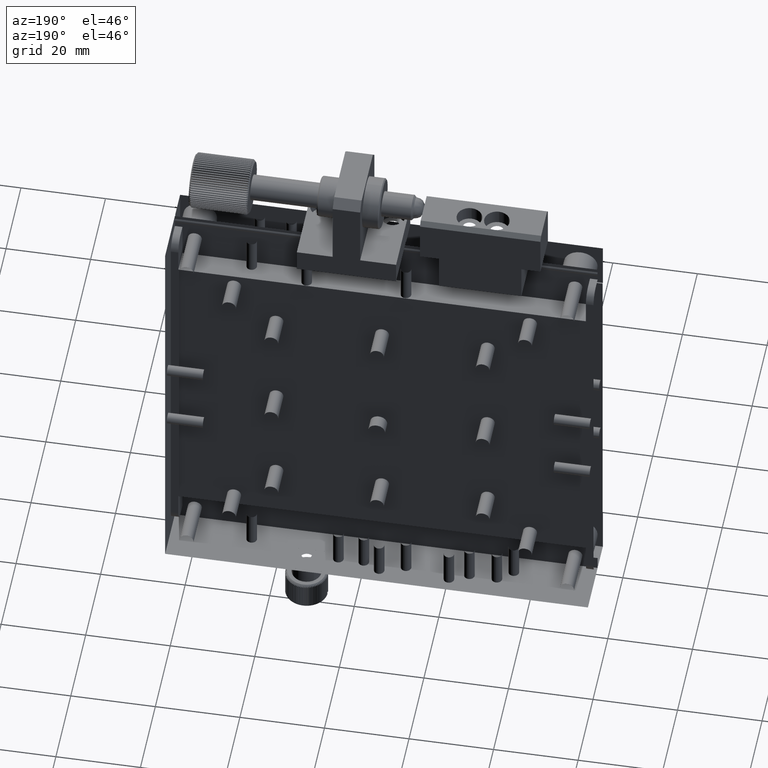
[diagram: clean part render]
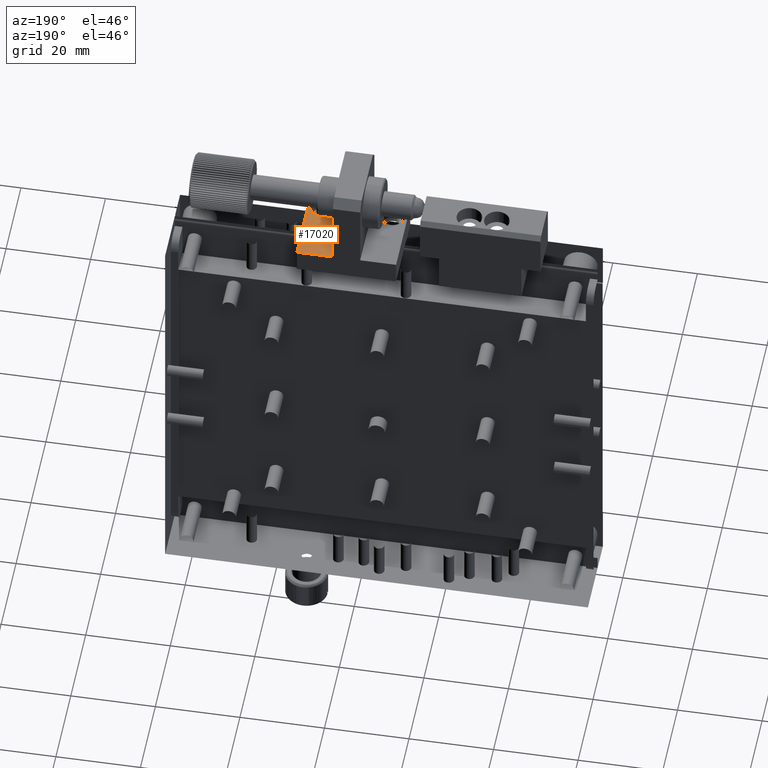
[diagram: same view with one face highlighted and labeled with its STEP entity id]
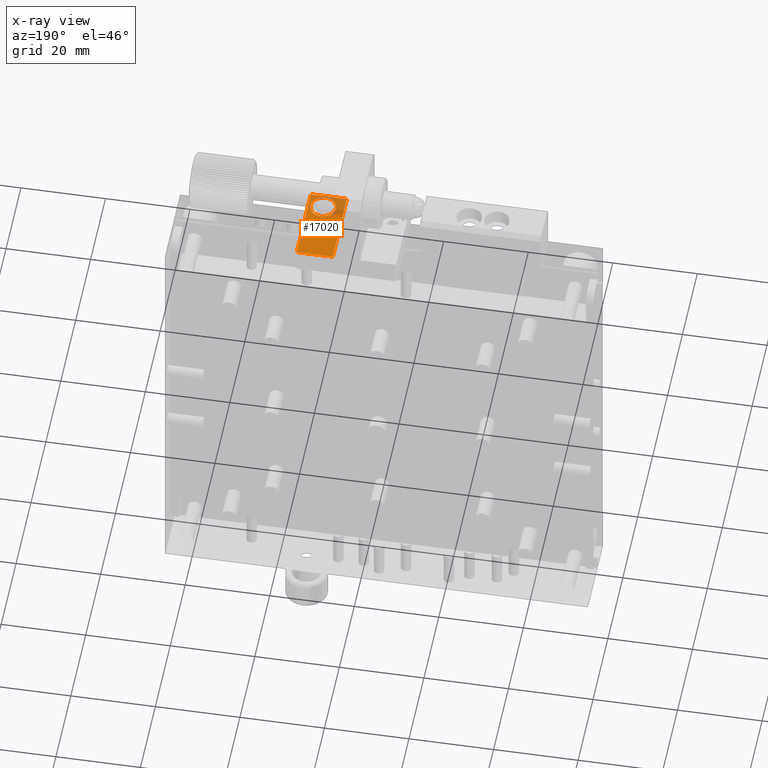
[diagram: x-ray of the same camera — body ghosted, the highlighted face saturated]
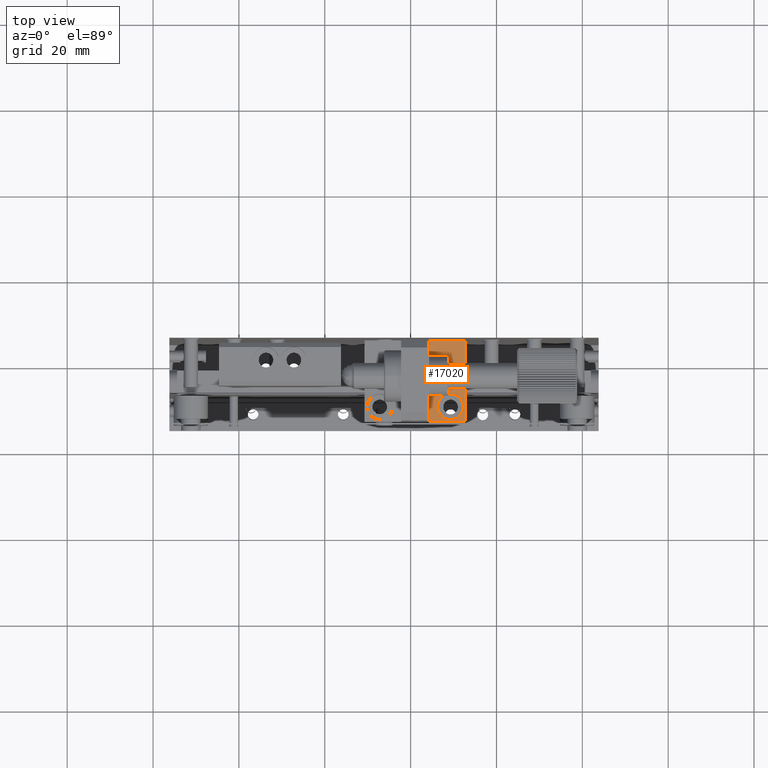
[diagram: same view with one face highlighted and labeled with its STEP entity id]
A machine part, auxiliary view. The second image highlights one B-rep face of the part: STEP entity #17020.
The next image is the same camera in x-ray: the body ghosted, the highlighted face saturated — about 12% of this face is hidden behind the body in this view.
A second angle (top view) of the same face is appended — the face is thin or edge-on in the first view.
In plain terms, the highlighted planar face has unit normal (0, 0, 1).
Its self-contained STEP definition (entity closure, byte-faithful):
#34 = CARTESIAN_POINT ( 'NONE',  ( 24.30109935357899431, -14.49094997660293416, 56.00001249999999686 ) ) ;
#87 = DIRECTION ( 'NONE',  ( 6.938893903907222985E-18, 1.000000000000000000, 0.000000000000000000 ) ) ;
#858 = PLANE ( 'NONE',  #17413 ) ;
#1788 = EDGE_CURVE ( 'NONE', #8784, #8784, #5316, .T. ) ;
#1956 = CARTESIAN_POINT ( 'NONE',  ( 9.301099353578996087, 4.509050023397064955, 56.00001249999999686 ) ) ;
#3124 = DIRECTION ( 'NONE',  ( 0.000000000000000000, -1.000000000000000000, 1.638234545514789198E-16 ) ) ;
#3421 = EDGE_CURVE ( 'NONE', #17105, #4019, #21251, .T. ) ;
#3883 = ORIENTED_EDGE ( 'NONE', *, *, #9344, .F. ) ;
#4019 = VERTEX_POINT ( 'NONE', #14212 ) ;
#4020 = LINE ( 'NONE', #8289, #11572 ) ;
#4461 = CARTESIAN_POINT ( 'NONE',  ( 24.30109935357899431, 4.509050023397064066, 56.00001249999999686 ) ) ;
#5316 = CIRCLE ( 'NONE', #12557, 3.000000000000012879 ) ;
#5688 = EDGE_LOOP ( 'NONE', ( #21020, #7417, #3883, #17556 ) ) ;
#6064 = CARTESIAN_POINT ( 'NONE',  ( 32.80109935357899786, -14.49094997660293771, 56.00001249999999686 ) ) ;
#7396 = EDGE_CURVE ( 'NONE', #11980, #4019, #13414, .T. ) ;
#7417 = ORIENTED_EDGE ( 'NONE', *, *, #7396, .F. ) ;
#8289 = CARTESIAN_POINT ( 'NONE',  ( 32.80109935357899786, 4.509050023397064066, 56.00001249999999686 ) ) ;
#8784 = VERTEX_POINT ( 'NONE', #13041 ) ;
#9344 = EDGE_CURVE ( 'NONE', #17659, #11980, #20602, .T. ) ;
#11395 = CARTESIAN_POINT ( 'NONE',  ( 32.80109935357899786, 4.509050023397064066, 56.00001249999999686 ) ) ;
#11572 = VECTOR ( 'NONE', #17209, 1000.000000000000000 ) ;
#11980 = VERTEX_POINT ( 'NONE', #34 ) ;
#12326 = VECTOR ( 'NONE', #87, 1000.000000000000000 ) ;
#12557 = AXIS2_PLACEMENT_3D ( 'NONE', #22144, #25968, #26395 ) ;
#12918 = EDGE_CURVE ( 'NONE', #17659, #17105, #4020, .T. ) ;
#13041 = CARTESIAN_POINT ( 'NONE',  ( 29.30109935357900142, -13.99094997660294659, 56.00001249999999686 ) ) ;
#13414 = LINE ( 'NONE', #4461, #12326 ) ;
#14212 = CARTESIAN_POINT ( 'NONE',  ( 24.30109935357899431, 4.509050023397064066, 56.00001249999999686 ) ) ;
#16456 = CARTESIAN_POINT ( 'NONE',  ( 32.80109935357899786, 4.509050023397064066, 56.00001249999999686 ) ) ;
#16623 = CARTESIAN_POINT ( 'NONE',  ( 9.301099353578996087, -14.49094997660293593, 56.00001249999999686 ) ) ;
#17020 = ADVANCED_FACE ( 'NONE', ( #22135, #24674 ), #858, .T. ) ;
#17105 = VERTEX_POINT ( 'NONE', #16456 ) ;
#17209 = DIRECTION ( 'NONE',  ( -0.000000000000000000, 1.000000000000000000, -1.638234545514789198E-16 ) ) ;
#17413 = AXIS2_PLACEMENT_3D ( 'NONE', #11395, #26801, #3124 ) ;
#17556 = ORIENTED_EDGE ( 'NONE', *, *, #12918, .T. ) ;
#17659 = VERTEX_POINT ( 'NONE', #6064 ) ;
#19627 = EDGE_LOOP ( 'NONE', ( #22501 ) ) ;
#19868 = VECTOR ( 'NONE', #21530, 1000.000000000000000 ) ;
#20602 = LINE ( 'NONE', #16623, #21389 ) ;
#21020 = ORIENTED_EDGE ( 'NONE', *, *, #3421, .T. ) ;
#21251 = LINE ( 'NONE', #1956, #19868 ) ;
#21389 = VECTOR ( 'NONE', #25274, 1000.000000000000000 ) ;
#21530 = DIRECTION ( 'NONE',  ( -1.000000000000000000, 6.938893903907222985E-18, -1.136753570104279108E-33 ) ) ;
#22135 = FACE_OUTER_BOUND ( 'NONE', #5688, .T. ) ;
#22144 = CARTESIAN_POINT ( 'NONE',  ( 29.30109935357900142, -10.99094997660293416, 56.00001249999999686 ) ) ;
#22501 = ORIENTED_EDGE ( 'NONE', *, *, #1788, .T. ) ;
#24674 = FACE_BOUND ( 'NONE', #19627, .T. ) ;
#25274 = DIRECTION ( 'NONE',  ( -1.000000000000000000, 6.938893903907222985E-18, -1.136753570104279108E-33 ) ) ;
#25968 = DIRECTION ( 'NONE',  ( -2.631107338828312251E-18, -1.638234545514789198E-16, -1.000000000000000000 ) ) ;
#26395 = DIRECTION ( 'NONE',  ( 0.000000000000000000, -1.000000000000000000, 0.000000000000000000 ) ) ;
#26801 = DIRECTION ( 'NONE',  ( 2.631107338828312251E-18, 1.638234545514789198E-16, 1.000000000000000000 ) ) ;